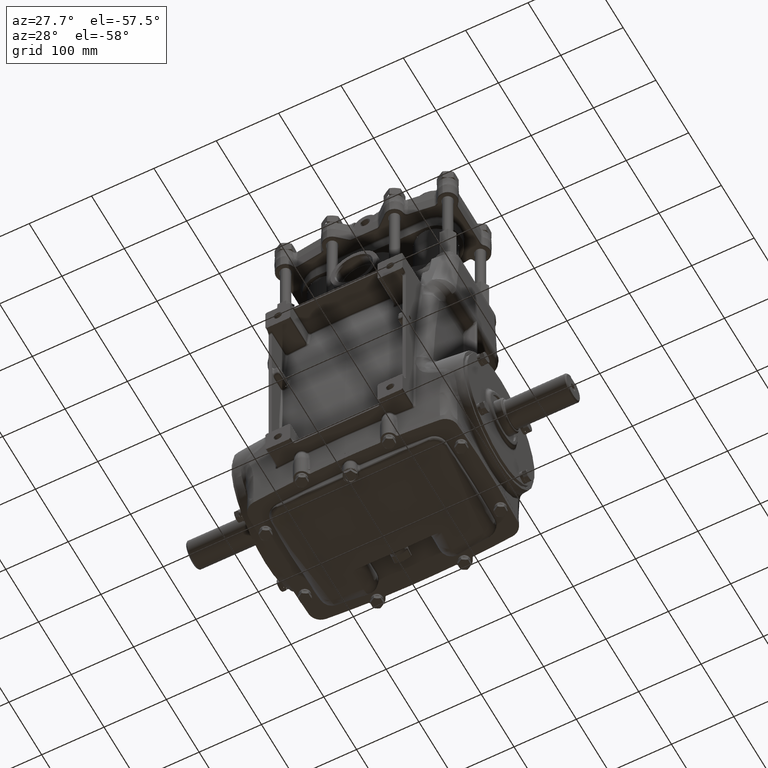
[diagram: clean part render]
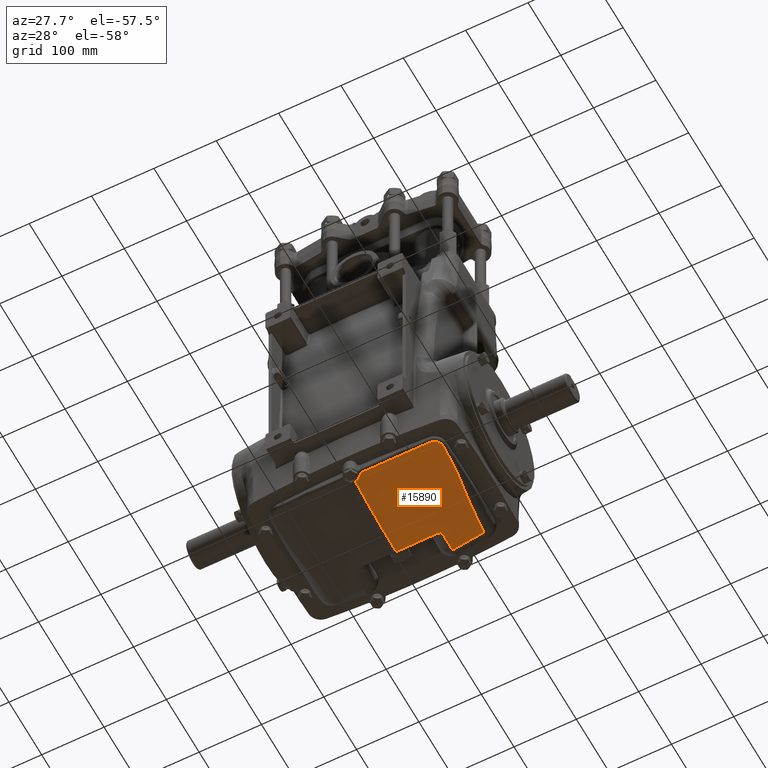
[diagram: same view with one face highlighted and labeled with its STEP entity id]
A machine part, auxiliary view. The second image highlights one B-rep face of the part: STEP entity #15890.
In plain terms, the highlighted toroidal blend (fillet) surface has major radius 300 mm and minor (blend) radius 700 mm.
Its self-contained STEP definition (entity closure, byte-faithful):
#1545 = FACE_OUTER_BOUND ( 'NONE', #111307, .T. ) ;
#1722 = VERTEX_POINT ( 'NONE', #113721 ) ;
#1922 = CARTESIAN_POINT ( 'NONE',  ( 4.880541632516624873, 1.924048125077437943, -5.854718412481648926 ) ) ;
#2107 = B_SPLINE_CURVE_WITH_KNOTS ( 'NONE', 3,
 ( #41133, #21576, #5455, #48050, #91341, #83818 ),
 .UNSPECIFIED., .F., .F.,
 ( 4, 2, 4 ),
 ( 0.01236748594910173221, 0.06737170396115280124, 0.1223759219732038495 ),
 .UNSPECIFIED. ) ;
#2178 = ORIENTED_EDGE ( 'NONE', *, *, #34234, .F. ) ;
#3146 = EDGE_CURVE ( 'NONE', #26408, #73759, #74721, .T. ) ;
#4053 = CARTESIAN_POINT ( 'NONE',  ( 2.434261824659145201, 1.606639635857287640, -6.064947200536434657 ) ) ;
#4634 = CARTESIAN_POINT ( 'NONE',  ( 2.499581784844672860, 1.610598010072807451, -6.060890861939918217 ) ) ;
#4855 = CARTESIAN_POINT ( 'NONE',  ( 0.000000000000000000, 1.824751546699278082, 21.41791557091272225 ) ) ;
#5429 = CARTESIAN_POINT ( 'NONE',  ( 5.033724942537766367, -3.434453761081072365, -5.307302620882437871 ) ) ;
#5455 = CARTESIAN_POINT ( 'NONE',  ( 1.931853258259351724, -3.638305189545421481, -5.552868048543251334 ) ) ;
#6553 = CARTESIAN_POINT ( 'NONE',  ( 0.2435141439681423325, -3.420184421071718273, -5.636678491302456351 ) ) ;
#7125 = CARTESIAN_POINT ( 'NONE',  ( 4.984472006344477180, -3.457394581205895268, -5.309210827171242819 ) ) ;
#9293 = VERTEX_POINT ( 'NONE', #40895 ) ;
#9462 = ORIENTED_EDGE ( 'NONE', *, *, #96026, .T. ) ;
#11019 = CARTESIAN_POINT ( 'NONE',  ( 3.842746221509609454E-15, -3.364041038235044301, -5.648261671423673747 ) ) ;
#12350 = CARTESIAN_POINT ( 'NONE',  ( 0.4877294735864445840, -3.659535562739759218, -5.586873153588124197 ) ) ;
#12687 = CARTESIAN_POINT ( 'NONE',  ( 2.797004342591181025, 1.694917036608007521, -6.041353094498735032 ) ) ;
#13142 = EDGE_CURVE ( 'NONE', #9293, #16358, #31915, .T. ) ;
#14614 = DIRECTION ( 'NONE',  ( -1.000000000000000000, -0.000000000000000000, -0.000000000000000000 ) ) ;
#15890 = ADVANCED_FACE ( 'NONE', ( #1545 ), #86350, .T. ) ;
#16358 = VERTEX_POINT ( 'NONE', #90465 ) ;
#21469 = B_SPLINE_CURVE_WITH_KNOTS ( 'NONE', 3,
 ( #4053, #24172, #4634, #102579, #110073, #84683, #57551, #75477, #39155, #32783, #47782, #12687, #66239, #101439 ),
 .UNSPECIFIED., .F., .F.,
 ( 4, 2, 2, 2, 2, 2, 4 ),
 ( 2.276126435504334081E-16, 0.002480966685143793076, 0.004961933370287358036, 0.007442900055430923430, 0.008683383398002690948, 0.009303625069288570804, 0.009923866740574450659 ),
 .UNSPECIFIED. ) ;
#21576 = CARTESIAN_POINT ( 'NONE',  ( 1.210477209355809602, -3.654505220724530101, -5.578813219982557747 ) ) ;
#21913 = CARTESIAN_POINT ( 'NONE',  ( 0.2297784026382459488, -3.413870119763415811, -5.637982275400688970 ) ) ;
#22687 = CARTESIAN_POINT ( 'NONE',  ( 0.2963987745866182855, -3.450012349667860967, -5.630511765672602031 ) ) ;
#22695 = CARTESIAN_POINT ( 'NONE',  ( 5.241086578144337871, -3.261236225363271846, -5.313054194956410292 ) ) ;
#23277 = CARTESIAN_POINT ( 'NONE',  ( 0.4212764955910056619, -3.558700208755347205, -5.607948092893978220 ) ) ;
#24172 = CARTESIAN_POINT ( 'NONE',  ( 2.467158401820672697, 1.607300103456730689, -6.062914490278744850 ) ) ;
#24985 = CARTESIAN_POINT ( 'NONE',  ( 5.049886546279415356, -3.426009580275169331, -5.306842600727459391 ) ) ;
#26408 = VERTEX_POINT ( 'NONE', #51908 ) ;
#27479 = CARTESIAN_POINT ( 'NONE',  ( 0.000000000000000000, 1.824751546699278082, 33.22893919295996312 ) ) ;
#28502 = CARTESIAN_POINT ( 'NONE',  ( 0.4737789579380618510, -3.632699680336208825, -5.592498241481408172 ) ) ;
#30553 = CARTESIAN_POINT ( 'NONE',  ( 0.03927151281586335058, -3.365072260868046339, -5.648049143069698630 ) ) ;
#31226 = EDGE_CURVE ( 'NONE', #55119, #9293, #87229, .T. ) ;
#31875 = CARTESIAN_POINT ( 'NONE',  ( 4.879996799677580377, -3.486948360581074713, -5.316731123404999870 ) ) ;
#31915 = B_SPLINE_CURVE_WITH_KNOTS ( 'NONE', 3,
 ( #107373, #71082, #63533, #107951, #1922, #106250 ),
 .UNSPECIFIED., .F., .F.,
 ( 4, 2, 4 ),
 ( 0.000000000000000000, 0.5000000000000000000, 1.000000000000000000 ),
 .UNSPECIFIED. ) ;
#32783 = CARTESIAN_POINT ( 'NONE',  ( 2.774196398429848998, 1.685874443783022647, -6.042926722567060871 ) ) ;
#32944 = CARTESIAN_POINT ( 'NONE',  ( -3.346919348482985394E-33, 1.582229971301458704, -6.140072423287879388 ) ) ;
#33008 = CARTESIAN_POINT ( 'NONE',  ( 5.096777293988907331, -3.397681871397706832, -5.306199164813016012 ) ) ;
#33394 = CARTESIAN_POINT ( 'NONE',  ( 2.812148308104204020, 1.701088795419486877, -6.040299091886770277 ) ) ;
#33998 = CARTESIAN_POINT ( 'NONE',  ( 2.812132526087493645, 3.010549370942952496, -6.014990193079878367 ) ) ;
#34234 = EDGE_CURVE ( 'NONE', #73759, #104267, #92624, .T. ) ;
#36979 = B_SPLINE_CURVE_WITH_KNOTS ( 'NONE', 3,
 ( #12350, #28502, #47448, #23277, #58938, #57223, #74575, #22687, #67039, #92435, #6553, #41665 ),
 .UNSPECIFIED., .F., .F.,
 ( 4, 2, 2, 2, 2, 4 ),
 ( 1.734723475976807094E-18, 0.002335081971561272108, 0.004670163943122542481, 0.007005245914683813288, 0.008172786900464447390, 0.009340327886245083228 ),
 .UNSPECIFIED. ) ;
#37535 = EDGE_CURVE ( 'NONE', #82771, #75593, #39305, .T. ) ;
#37846 = ORIENTED_EDGE ( 'NONE', *, *, #31226, .F. ) ;
#37959 = CARTESIAN_POINT ( 'NONE',  ( 3.842746221509609454E-15, -3.364041038235044301, -5.648261671423673747 ) ) ;
#37976 = CARTESIAN_POINT ( 'NONE',  ( 0.2297784026382459488, -3.413870119763415811, -5.637982275400688970 ) ) ;
#38053 = CARTESIAN_POINT ( 'NONE',  ( 0.09811938222524238529, -3.372360663527925961, -5.646546757518499327 ) ) ;
#38340 = EDGE_CURVE ( 'NONE', #16358, #82771, #113432, .T. ) ;
#39155 = CARTESIAN_POINT ( 'NONE',  ( 2.751305435580421399, 1.677057974726242850, -6.044493808033123194 ) ) ;
#39305 = B_SPLINE_CURVE_WITH_KNOTS ( 'NONE', 3,
 ( #67444, #68559, #102059, #33394 ),
 .UNSPECIFIED., .F., .F.,
 ( 4, 4 ),
 ( 0.000000000000000000, 0.03326646946209799866 ),
 .UNSPECIFIED. ) ;
#40895 = CARTESIAN_POINT ( 'NONE',  ( 5.360178882565543645, -2.927451683223999623, -5.357800683653446860 ) ) ;
#40913 = CARTESIAN_POINT ( 'NONE',  ( 4.807788219395104257, -3.496116492186950975, -5.323983456037651329 ) ) ;
#41108 = CARTESIAN_POINT ( 'NONE',  ( 5.319986711889992392, -3.119926642901834413, -5.328644194265905298 ) ) ;
#41133 = CARTESIAN_POINT ( 'NONE',  ( 0.4877294735864445840, -3.659535562739759218, -5.586873153588124197 ) ) ;
#41665 = CARTESIAN_POINT ( 'NONE',  ( 0.2297784026382459488, -3.413870119763415811, -5.637982275400688970 ) ) ;
#42148 = AXIS2_PLACEMENT_3D ( 'NONE', #27479, #89135, #44717 ) ;
#42234 = CARTESIAN_POINT ( 'NONE',  ( 5.281568287909769843, -3.201588821601273338, -5.318780719499171639 ) ) ;
#44235 = ORIENTED_EDGE ( 'NONE', *, *, #107467, .T. ) ;
#44717 = DIRECTION ( 'NONE',  ( 0.000000000000000000, 0.000000000000000000, -1.000000000000000000 ) ) ;
#47218 = ORIENTED_EDGE ( 'NONE', *, *, #98195, .T. ) ;
#47448 = CARTESIAN_POINT ( 'NONE',  ( 0.4577033197737750414, -3.607162025404837102, -5.597837415561794039 ) ) ;
#47782 = CARTESIAN_POINT ( 'NONE',  ( 2.781809236411487252, 1.688860914153496928, -6.042403132590063564 ) ) ;
#47851 = ORIENTED_EDGE ( 'NONE', *, *, #37535, .F. ) ;
#48050 = CARTESIAN_POINT ( 'NONE',  ( 3.371873501537797857, -3.583773380137238895, -5.465286664663715044 ) ) ;
#49726 = CARTESIAN_POINT ( 'NONE',  ( 5.081512726748598219, -3.407563633568248207, -5.306289430408320129 ) ) ;
#50217 = CARTESIAN_POINT ( 'NONE',  ( 1.623828398297766595, 1.590368489560495702, -6.115024639625040059 ) ) ;
#50702 = CARTESIAN_POINT ( 'NONE',  ( 3.490336519798898696, 2.983315668818144140, -5.967567498589518848 ) ) ;
#51908 = CARTESIAN_POINT ( 'NONE',  ( 2.434261824659145201, 1.606639635857287640, -6.064947200536434657 ) ) ;
#53272 = ORIENTED_EDGE ( 'NONE', *, *, #78602, .F. ) ;
#55119 = VERTEX_POINT ( 'NONE', #40913 ) ;
#57223 = CARTESIAN_POINT ( 'NONE',  ( 0.3576885386915084619, -3.494681751219408383, -5.621257479502166809 ) ) ;
#57551 = CARTESIAN_POINT ( 'NONE',  ( 2.689720252346790463, 1.655027810071075800, -6.048643191705019184 ) ) ;
#57801 = CARTESIAN_POINT ( 'NONE',  ( 5.360178882565543645, -2.927451683223999623, -5.357800683653446860 ) ) ;
#58384 = CARTESIAN_POINT ( 'NONE',  ( 5.326361990746772967, -3.102858777173423732, -5.330900886658606730 ) ) ;
#58938 = CARTESIAN_POINT ( 'NONE',  ( 0.4011799817011136304, -3.536140021149514645, -5.612643640727642769 ) ) ;
#58946 = CARTESIAN_POINT ( 'NONE',  ( 5.140980375108047618, -3.366126144661426345, -5.306466500724023483 ) ) ;
#59505 = CARTESIAN_POINT ( 'NONE',  ( 5.168341137774181249, -3.342557198949430042, -5.307357947498045903 ) ) ;
#63533 = CARTESIAN_POINT ( 'NONE',  ( 5.293015298459751605, -0.9872227947267740999, -5.656229700013359007 ) ) ;
#65122 = CARTESIAN_POINT ( 'NONE',  ( 0.01964966533313926636, -3.364041038235045633, -5.648261671423675523 ) ) ;
#66239 = CARTESIAN_POINT ( 'NONE',  ( 2.804632689135867718, 1.698007479565428968, -6.040823438318117411 ) ) ;
#66959 = ORIENTED_EDGE ( 'NONE', *, *, #38340, .F. ) ;
#67039 = CARTESIAN_POINT ( 'NONE',  ( 0.2834083292045331826, -3.441962007930002621, -5.632177176608922586 ) ) ;
#67444 = CARTESIAN_POINT ( 'NONE',  ( 2.812132526087493645, 3.010549370942952496, -6.014990193079878367 ) ) ;
#67620 = CARTESIAN_POINT ( 'NONE',  ( 5.342144275654240992, -3.051303830555013974, -5.338125044618379000 ) ) ;
#68013 = CARTESIAN_POINT ( 'NONE',  ( 4.840242302779922845, 2.899656050760234027, -5.821340785861177203 ) ) ;
#68026 = CARTESIAN_POINT ( 'NONE',  ( 2.812148308104204020, 1.701088795419486877, -6.040299091886770277 ) ) ;
#68174 = CARTESIAN_POINT ( 'NONE',  ( 5.218333242062025867, -3.289595542081743762, -5.310752198899931109 ) ) ;
#68559 = CARTESIAN_POINT ( 'NONE',  ( 2.812144280299276655, 2.574247221612352643, -6.033827933789728704 ) ) ;
#71082 = CARTESIAN_POINT ( 'NONE',  ( 5.400448329765261235, -1.959226436991761799, -5.523331220873142655 ) ) ;
#73759 = VERTEX_POINT ( 'NONE', #89498 ) ;
#74575 = CARTESIAN_POINT ( 'NONE',  ( 0.3342401366933785978, -3.475711029905725447, -5.625190889438562714 ) ) ;
#74721 = B_SPLINE_CURVE_WITH_KNOTS ( 'NONE', 3,
 ( #94091, #50217, #85422, #32944 ),
 .UNSPECIFIED., .F., .F.,
 ( 4, 4 ),
 ( -0.06188400432762436454, 1.999312279274412241E-07 ),
 .UNSPECIFIED. ) ;
#75477 = CARTESIAN_POINT ( 'NONE',  ( 2.735974893832352262, 1.671370829869121000, -6.045533616199472604 ) ) ;
#75593 = VERTEX_POINT ( 'NONE', #68026 ) ;
#75722 = CARTESIAN_POINT ( 'NONE',  ( 5.337421209621137308, -3.068590556601563879, -5.335636005610887800 ) ) ;
#75807 = VERTEX_POINT ( 'NONE', #37976 ) ;
#76844 = CARTESIAN_POINT ( 'NONE',  ( 4.950513585213516699, -3.469580393225757842, -5.311184794286596400 ) ) ;
#77402 = CARTESIAN_POINT ( 'NONE',  ( 5.251736528445274388, -3.246633039124112940, -5.314367873378915696 ) ) ;
#78602 = EDGE_CURVE ( 'NONE', #1722, #55119, #2107, .T. ) ;
#79774 = AXIS2_PLACEMENT_3D ( 'NONE', #4855, #14614, #102228 ) ;
#81875 = CARTESIAN_POINT ( 'NONE',  ( 0.07845892614821234345, -3.369221067610173037, -5.647193954812964378 ) ) ;
#82771 = VERTEX_POINT ( 'NONE', #33998 ) ;
#83788 = CARTESIAN_POINT ( 'NONE',  ( 4.807788219395104257, -3.496116492186950975, -5.323983456037651329 ) ) ;
#83818 = CARTESIAN_POINT ( 'NONE',  ( 4.807788219395104257, -3.496116492186950975, -5.323983456037651329 ) ) ;
#84354 = CARTESIAN_POINT ( 'NONE',  ( 4.897888106521786078, -3.483187433946809186, -5.315206216569228204 ) ) ;
#84683 = CARTESIAN_POINT ( 'NONE',  ( 2.658464246173371848, 1.645070282001908746, -6.050707505818283316 ) ) ;
#84920 = CARTESIAN_POINT ( 'NONE',  ( 5.353946565448759465, -2.998995579519901256, -5.345947324219060270 ) ) ;
#85422 = CARTESIAN_POINT ( 'NONE',  ( 0.8124080174919480202, 1.582229971301457594, -6.140072423287882941 ) ) ;
#85887 = CARTESIAN_POINT ( 'NONE',  ( 2.812132526087493645, 3.010549370942952496, -6.014990193079878367 ) ) ;
#86350 = TOROIDAL_SURFACE ( 'NONE', #42148, 11.81102362204724265, 27.55905511811023700 ) ;
#87229 = B_SPLINE_CURVE_WITH_KNOTS ( 'NONE', 3,
 ( #83788, #101672, #103948, #31875, #84354, #76844, #7125, #5429, #24985, #49726, #33008, #58946, #59505, #94712, #68174, #22695, #77402, #42234, #103375, #41108, #58384, #75722, #67620, #84920, #92442, #57801 ),
 .UNSPECIFIED., .F., .F.,
 ( 4, 2, 2, 2, 2, 2, 2, 2, 2, 2, 2, 2, 4 ),
 ( 0.000000000000000000, 0.001393468656929867412, 0.002786937313859734824, 0.005573874627719434954, 0.006967343284649294560, 0.008360811941579152431, 0.01114774925543880399, 0.01254121791236861329, 0.01393468656929842779, 0.01672162388315804812, 0.01811509254008786610, 0.01950856119701768060, 0.02229549851087730961 ),
 .UNSPECIFIED. ) ;
#89135 = DIRECTION ( 'NONE',  ( 0.000000000000000000, -1.000000000000000000, 0.000000000000000000 ) ) ;
#89498 = CARTESIAN_POINT ( 'NONE',  ( -3.346919348482985394E-33, 1.582229971301458704, -6.140072423287879388 ) ) ;
#89977 = CARTESIAN_POINT ( 'NONE',  ( 0.1562833098085748829, -3.384908027298649369, -5.643959498002079300 ) ) ;
#90465 = CARTESIAN_POINT ( 'NONE',  ( 4.840242302779922845, 2.899656050760234027, -5.821340785861177203 ) ) ;
#91341 = CARTESIAN_POINT ( 'NONE',  ( 4.090517692144738149, -3.545441420707249325, -5.403650496663405356 ) ) ;
#92435 = CARTESIAN_POINT ( 'NONE',  ( 0.2569883187545530245, -3.427063445841094236, -5.635257350601357906 ) ) ;
#92442 = CARTESIAN_POINT ( 'NONE',  ( 5.358678364081207235, -2.963529652962363592, -5.351632691506574169 ) ) ;
#92624 = CIRCLE ( 'NONE', #79774, 27.55905511811023700 ) ;
#94091 = CARTESIAN_POINT ( 'NONE',  ( 2.434261824659145201, 1.606639635857287640, -6.064947200536434657 ) ) ;
#94712 = CARTESIAN_POINT ( 'NONE',  ( 5.206194522468571506, -3.303374770522423454, -5.309764036319435832 ) ) ;
#96026 = EDGE_CURVE ( 'NONE', #1722, #75807, #36979, .T. ) ;
#98195 = EDGE_CURVE ( 'NONE', #26408, #75593, #21469, .T. ) ;
#101439 = CARTESIAN_POINT ( 'NONE',  ( 2.812148308104204020, 1.701088795419486877, -6.040299091886770277 ) ) ;
#101672 = CARTESIAN_POINT ( 'NONE',  ( 4.825956977166343087, -3.494867071439379025, -5.321965457097936003 ) ) ;
#102059 = CARTESIAN_POINT ( 'NONE',  ( 2.812149532266563501, 2.137760349558801121, -6.042263470602809328 ) ) ;
#102228 = DIRECTION ( 'NONE',  ( 0.000000000000000000, 0.000000000000000000, 1.000000000000000000 ) ) ;
#102579 = CARTESIAN_POINT ( 'NONE',  ( 2.563751155393802605, 1.620961619166637169, -6.056834601465286738 ) ) ;
#103208 = CARTESIAN_POINT ( 'NONE',  ( 4.166371834084402259, 2.946303581037741814, -5.903031597596715585 ) ) ;
#103375 = CARTESIAN_POINT ( 'NONE',  ( 5.298649251694552476, -3.169923180994641765, -5.322347823598065020 ) ) ;
#103948 = CARTESIAN_POINT ( 'NONE',  ( 4.844032478405734032, -3.492783821194469507, -5.320111385042866736 ) ) ;
#104267 = VERTEX_POINT ( 'NONE', #37959 ) ;
#106250 = CARTESIAN_POINT ( 'NONE',  ( 4.840242302779922845, 2.899656050760234027, -5.821340785861177203 ) ) ;
#107373 = CARTESIAN_POINT ( 'NONE',  ( 5.360178882565543645, -2.927451683223999623, -5.357800683653446860 ) ) ;
#107467 = EDGE_CURVE ( 'NONE', #75807, #104267, #112596, .T. ) ;
#107838 = CARTESIAN_POINT ( 'NONE',  ( 0.1937249615059463137, -3.397296402696205142, -5.641404435304998799 ) ) ;
#107951 = CARTESIAN_POINT ( 'NONE',  ( 5.032817424147098428, 0.9545078366542655290, -5.821849382911058690 ) ) ;
#108486 = ORIENTED_EDGE ( 'NONE', *, *, #13142, .F. ) ;
#110073 = CARTESIAN_POINT ( 'NONE',  ( 2.595493415602901255, 1.628048154302350836, -6.054802203786146642 ) ) ;
#110468 = ORIENTED_EDGE ( 'NONE', *, *, #3146, .F. ) ;
#111307 = EDGE_LOOP ( 'NONE', ( #2178, #110468, #47218, #47851, #66959, #108486, #37846, #53272, #9462, #44235 ) ) ;
#112596 = B_SPLINE_CURVE_WITH_KNOTS ( 'NONE', 3,
 ( #21913, #107838, #89977, #38053, #81875, #30553, #65122, #11019 ),
 .UNSPECIFIED., .F., .F.,
 ( 4, 2, 2, 4 ),
 ( 0.000000000000000000, 0.003011261225356658567, 0.004516891838034986333, 0.006022522450713315399 ),
 .UNSPECIFIED. ) ;
#113432 = B_SPLINE_CURVE_WITH_KNOTS ( 'NONE', 3,
 ( #68013, #103208, #50702, #85887 ),
 .UNSPECIFIED., .F., .F.,
 ( 4, 4 ),
 ( 0.000000000000000000, 0.05182488106915178472 ),
 .UNSPECIFIED. ) ;
#113721 = CARTESIAN_POINT ( 'NONE',  ( 0.4877294735864445840, -3.659535562739759218, -5.586873153588124197 ) ) ;